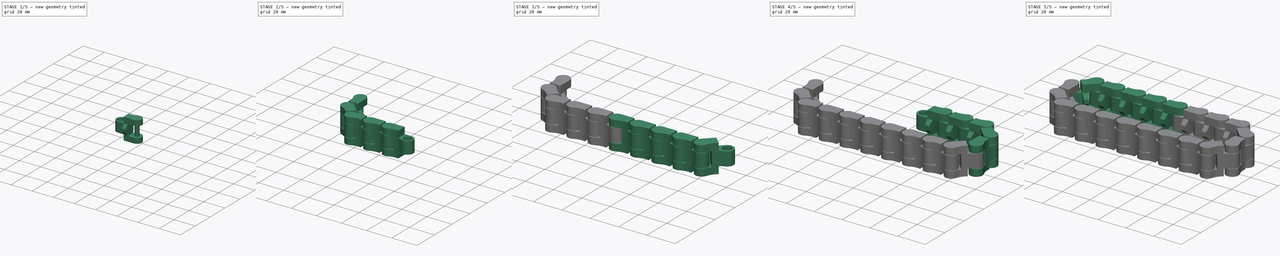
[diagram: build sequence overview — one tinted view per stage of 5, left to right]
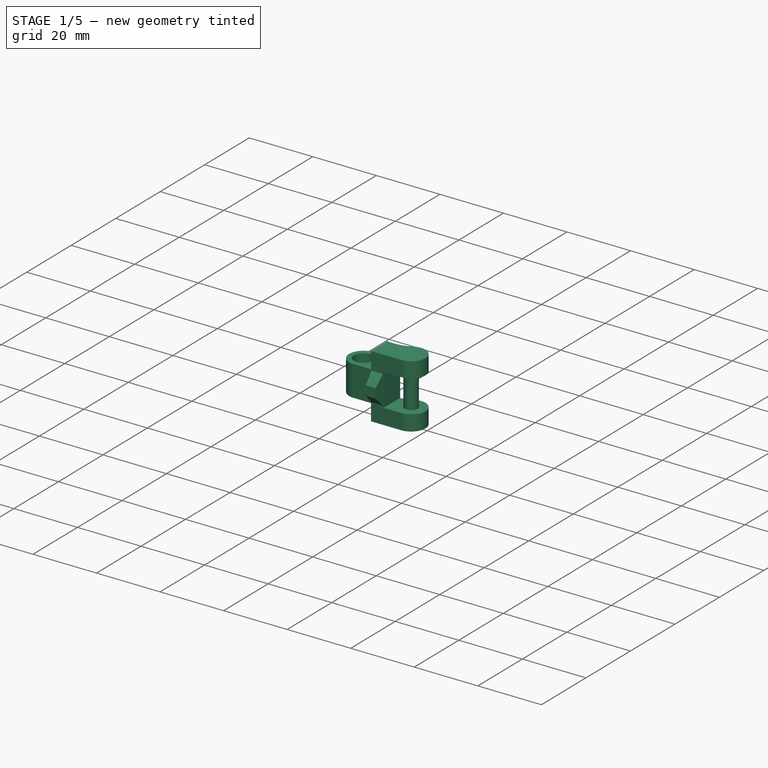
[diagram: stage 1 of 5 — iso view after this stage's code; geometry added in this stage tinted green]
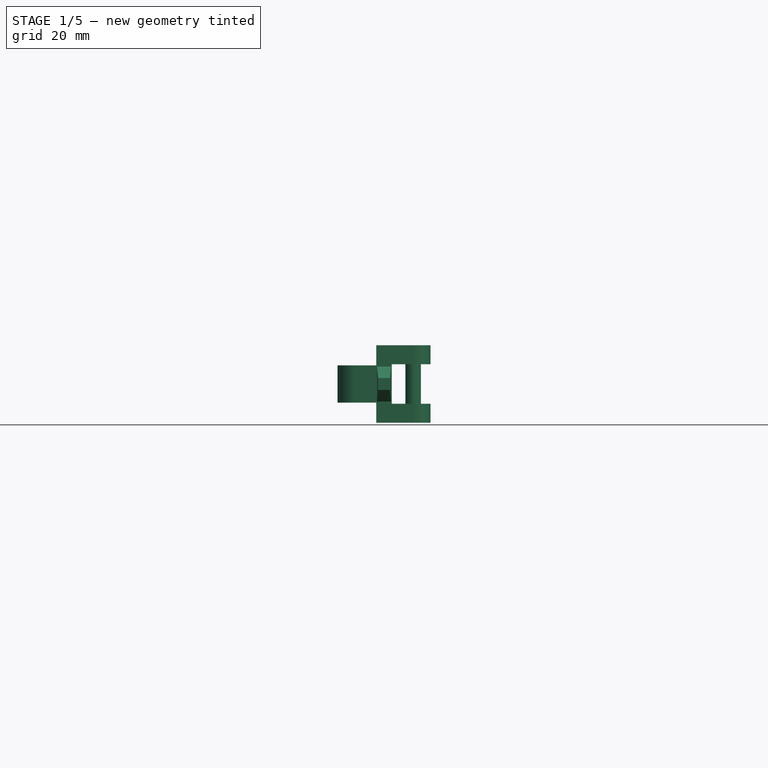
[diagram: stage 1 of 5 — front view after this stage's code; geometry added in this stage tinted green]
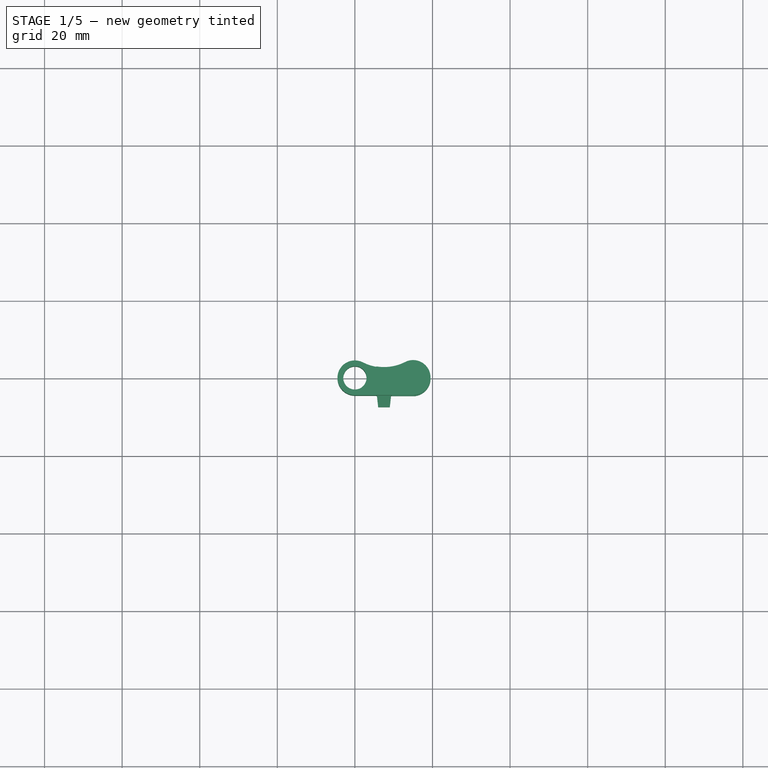
[diagram: stage 1 of 5 — top view after this stage's code; geometry added in this stage tinted green]
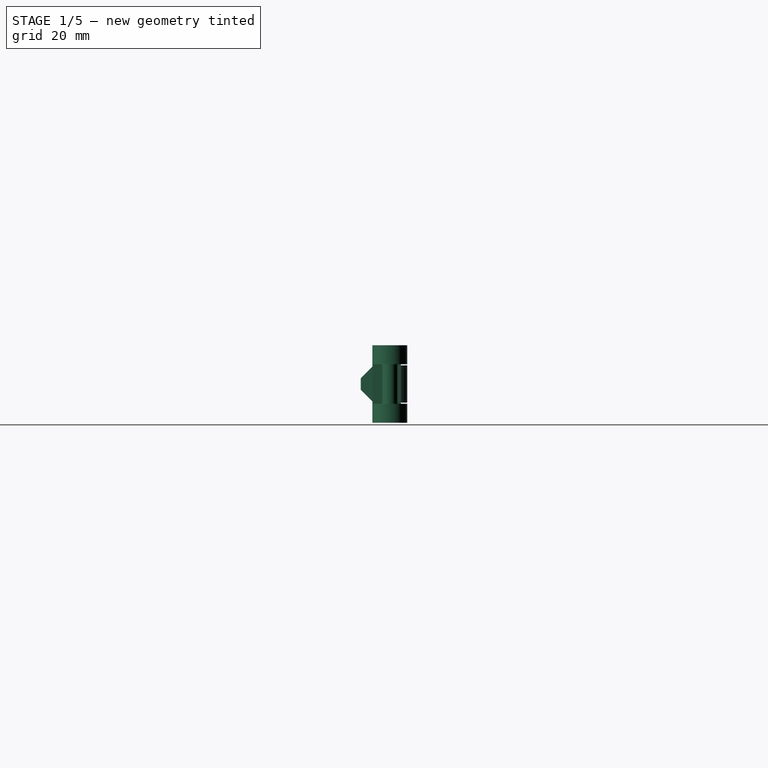
[diagram: stage 1 of 5 — right view after this stage's code; geometry added in this stage tinted green]
FCSTD DOCUMENT  (FreeCAD 0.17R13541 (Git))
Label: track
License: All rights reserved
LicenseURL: http://en.wikipedia.org/wiki/All_rights_reserved
objects: PartDesign::FeatureBase×20, Sketcher::SketchObject×4, PartDesign::Plane×3, PartDesign::Pocket×3, PartDesign::Pad×1, PartDesign::Mirrored×1, PartDesign::Body×1
note: 37 computed .brp shape members not serialized (recipe doc carries the construction recipe); baked Part::Feature solids carry a one-line shape summary decoded from their .brp

FEATURE [Sketcher::SketchObject] Sketch
  MapMode = 5
  Support = -> [XY_Plane]
  sketch-geometry (12):
    g0: ArcOfCircle CenterX=0 CenterY=0 CenterZ=0 NormalX=0 NormalY=0 NormalZ=1 AngleXU=0 Radius=4.5 StartAngle=1.09893 EndAngle=4.71239
    g1: ArcOfCircle CenterX=15 CenterY=0 CenterZ=0 NormalX=0 NormalY=0 NormalZ=1 AngleXU=0 Radius=4.5 StartAngle=4.71239 EndAngle=8.32584
    g2: ArcOfCircle CenterX=7.5 CenterY=14.6969 CenterZ=0 NormalX=0 NormalY=0 NormalZ=1 AngleXU=0 Radius=12 StartAngle=4.24053 EndAngle=5.18425
    g3: GeomPoint X=0 Y=4.5 Z=0
    g4: LineSegment StartX=2.12546e-05 StartY=-4.5 StartZ=0 EndX=5.67857 EndY=-4.5 EndZ=0
    g5: LineSegment StartX=5.67857 StartY=-4.5 StartZ=0 EndX=6 EndY=-7.5 EndZ=0
    g6: LineSegment StartX=6 StartY=-7.5 StartZ=0 EndX=9 EndY=-7.5 EndZ=0
    g7: LineSegment StartX=9 StartY=-7.5 StartZ=0 EndX=9.32143 EndY=-4.5 EndZ=0
    g8: LineSegment StartX=9.32143 StartY=-4.5 StartZ=0 EndX=15 EndY=-4.5 EndZ=0
    g9: Circle CenterX=0 CenterY=0 CenterZ=0 NormalX=0 NormalY=0 NormalZ=1 AngleXU=0 Radius=3
    g10: LineSegment [constr] StartX=7.5 StartY=14.6969 StartZ=0 EndX=7.5 EndY=-7.5 EndZ=0
    g11: GeomPoint X=7.5 Y=-21.5 Z=0
  constraints (31):
    c: Coincident(g0,g-1)
    c: PointOnObject(g1,g-1)
    c: Equal(g0,g1)
    c: Tangent(g2,g0) = 1.5708
    c: Tangent(g2,g1) = 1.5708
    c: PointOnObject(g3,g-2)
    c: PointOnObject(g3,g0)
    c: DistanceY(g0,g3) = 9
    c: Coincident(g4,g0)
    c: Horizontal(g4)
    c: Coincident(g4,g5)
    c: Coincident(g5,g6)
    c: Horizontal(g6)
    c: Coincident(g6,g7)
    c: Coincident(g7,g8)
    c: Coincident(g8,g1)
    c: Horizontal(g8)
    c: Tangent(g8,g1)
    c: DistanceX(g-1,g1) = 15
    c: Coincident(g9,g-1)
    c: Radius(g9) = 3
    c: Coincident(g10,g2)
    c: PointOnObject(g10,g6)
    c: Symmetric(g5,g6,g10)
    c: Symmetric(g7,g4,g10)
    c: DistanceY(g5,g4) = 3
    c: DistanceX(g6,g6) = 3
    c: Radius(g2) = 12
    c: PointOnObject(g11,g10)
    c: DistanceY(g11,g4) = 17
    c: PointOnObject(g11,g5)
FEATURE [PartDesign::Pad] Pad
  Length = 20
  Length2 = 100
  Midplane = true
  Profile = -> Sketch
  Type = 0
FEATURE [PartDesign::Plane] DatumPlane
  MapMode = 5
  Support = -> [XY_Plane]
FEATURE [Sketcher::SketchObject] Sketch001
  MapMode = 5
  Support = -> [DatumPlane]
  sketch-geometry (6):
    g0: Circle CenterX=15 CenterY=0 CenterZ=0 NormalX=0 NormalY=0 NormalZ=1 AngleXU=0 Radius=2
    g1: LineSegment StartX=9.5 StartY=5.5 StartZ=0 EndX=9.5 EndY=-5.5 EndZ=0
    g2: LineSegment StartX=9.5 StartY=-5.5 StartZ=0 EndX=20.5 EndY=-5.5 EndZ=0
    g3: LineSegment StartX=20.5 StartY=-5.5 StartZ=0 EndX=20.5 EndY=5.5 EndZ=0
    g4: LineSegment StartX=20.5 StartY=5.5 StartZ=0 EndX=9.5 EndY=5.5 EndZ=0
    g5: Circle [constr] CenterX=15 CenterY=0 CenterZ=0 NormalX=0 NormalY=0 NormalZ=1 AngleXU=0 Radius=7.77817
  constraints (17):
    c: PointOnObject(g0,g-1)
    c: Radius(g0) = 2
    c: Coincident(g1,g2)
    c: Coincident(g2,g3)
    c: Coincident(g3,g4)
    c: Coincident(g4,g1)
    c: Equal(g1,g2)
    c: Equal(g1,g3)
    c: Equal(g1,g4)
    c: PointOnObject(g1,g5)
    c: PointOnObject(g2,g5)
    c: PointOnObject(g3,g5)
    c: PointOnObject(g4,g5)
    c: Coincident(g5,g0)
    c: DistanceX(g4,g4) = 11
    c: DistanceX(g-1,g0) = 15
    c: Horizontal(g4)
FEATURE [PartDesign::Pocket] Pocket
  BaseFeature = -> Pad
  Length = 10.2
  Length2 = 100
  Midplane = true
  Profile = -> Sketch001
  Type = 0
FEATURE [PartDesign::Plane] DatumPlane001
  AttachmentOffset = pos=(0,0,10) rot=(0,0,1;0rad)
  MapMode = 5
  Placement = pos=(0,0,10) rot=(0,0,1;0rad)
  Support = -> [XY_Plane]
FEATURE [Sketcher::SketchObject] Sketch002
  MapMode = 5
  Placement = pos=(0,0,10) rot=(0,0,1;0rad)
  Support = -> [DatumPlane001]
  sketch-geometry (5):
    g0: LineSegment StartX=-5.5 StartY=5.5 StartZ=0 EndX=-5.5 EndY=-5.5 EndZ=0
    g1: LineSegment StartX=-5.5 StartY=-5.5 StartZ=0 EndX=5.5 EndY=-5.5 EndZ=0
    g2: LineSegment StartX=5.5 StartY=-5.5 StartZ=0 EndX=5.5 EndY=5.5 EndZ=0
    g3: LineSegment StartX=5.5 StartY=5.5 StartZ=0 EndX=-5.5 EndY=5.5 EndZ=0
    g4: Circle [constr] CenterX=0 CenterY=0 CenterZ=0 NormalX=0 NormalY=0 NormalZ=1 AngleXU=0 Radius=7.77817
  constraints (14):
    c: Coincident(g0,g1)
    c: Coincident(g1,g2)
    c: Coincident(g2,g3)
    c: Coincident(g3,g0)
    c: Equal(g0,g1)
    c: Equal(g0,g2)
    c: Equal(g0,g3)
    c: PointOnObject(g0,g4)
    c: PointOnObject(g1,g4)
    c: PointOnObject(g2,g4)
    c: PointOnObject(g3,g4)
    c: Coincident(g4,g-1)
    c: DistanceX(g3,g3) = 11
    c: Horizontal(g3)
FEATURE [PartDesign::Pocket] Pocket001
  BaseFeature = -> Pocket
  Length = 5.2
  Length2 = 100
  Profile = -> Sketch002
  Type = 0
FEATURE [PartDesign::Mirrored] Mirrored
  BaseFeature = -> Pocket001
  MirrorPlane = -> XY_Plane
  Originals = -> [Pocket001]
FEATURE [PartDesign::Plane] DatumPlane002
  AttachmentOffset = pos=(0,0,25) rot=(0,0,1;0rad)
  MapMode = 5
  Placement = pos=(25,-3e-12,3e-12) rot=(0.57735,0.57735,0.57735;2.0944rad)
  Support = -> [YZ_Plane]
FEATURE [Sketcher::SketchObject] Sketch003
  MapMode = 5
  Placement = pos=(25,-3e-12,3e-12) rot=(0.57735,0.57735,0.57735;2.0944rad)
  Support = -> [DatumPlane002]
  sketch-geometry (8):
    g0: LineSegment StartX=-4.5 StartY=15 StartZ=0 EndX=-4.5 EndY=4.5 EndZ=0
    g1: LineSegment StartX=-4.5 StartY=4.5 StartZ=0 EndX=-7.5 EndY=1.5 EndZ=0
    g2: LineSegment StartX=-7.5 StartY=1.5 StartZ=0 EndX=-7.5 EndY=-1.5 EndZ=0
    g3: LineSegment StartX=-7.5 StartY=-1.5 StartZ=0 EndX=-4.5 EndY=-4.5 EndZ=0
    g4: LineSegment StartX=-4.5 StartY=-4.5 StartZ=0 EndX=-4.5 EndY=-15 EndZ=0
    g5: LineSegment StartX=-4.5 StartY=-15 StartZ=0 EndX=-9.5 EndY=-15 EndZ=0
    g6: LineSegment StartX=-9.5 StartY=-15 StartZ=0 EndX=-9.5 EndY=15 EndZ=0
    g7: LineSegment StartX=-9.5 StartY=15 StartZ=0 EndX=-4.5 EndY=15 EndZ=0
  constraints (23):
    c: Vertical(g0)
    c: Coincident(g0,g1)
    c: Coincident(g1,g2)
    c: Vertical(g2)
    c: Coincident(g2,g3)
    c: Coincident(g3,g4)
    c: Vertical(g4)
    c: Coincident(g4,g5)
    c: Horizontal(g5)
    c: Coincident(g5,g6)
    c: Vertical(g6)
    c: Coincident(g6,g7)
    c: Coincident(g7,g0)
    c: Horizontal(g7)
    c: Symmetric(g2,g1,g-1)
    c: Symmetric(g0,g3,g-1)
    c: Angle(g0,g1) = 2.35619
    c: DistanceX(g2,g3) = 3
    c: DistanceX(g5,g5) = 5
    c: DistanceX(g3,g-1) = 4.5
    c: DistanceY(g2,g2) = 3
    c: Symmetric(g6,g5,g-1)
    c: DistanceY(g6,g6) = 30
FEATURE [PartDesign::Pocket] Pocket002
  BaseFeature = -> Mirrored
  Length = 5
  Length2 = 100
  Profile = -> Sketch003
  Type = 1
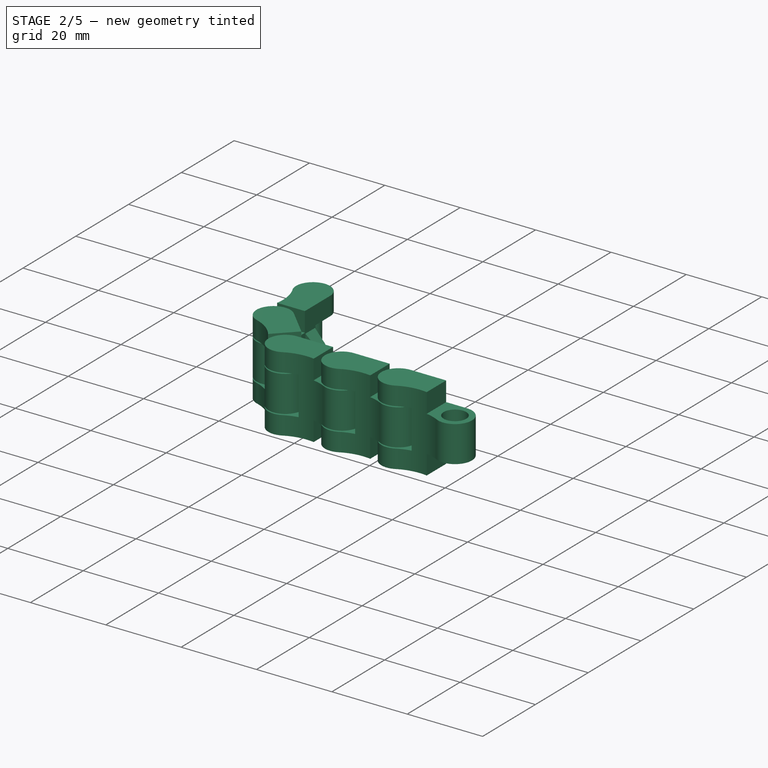
[diagram: stage 2 of 5 — iso view after this stage's code; geometry added in this stage tinted green]
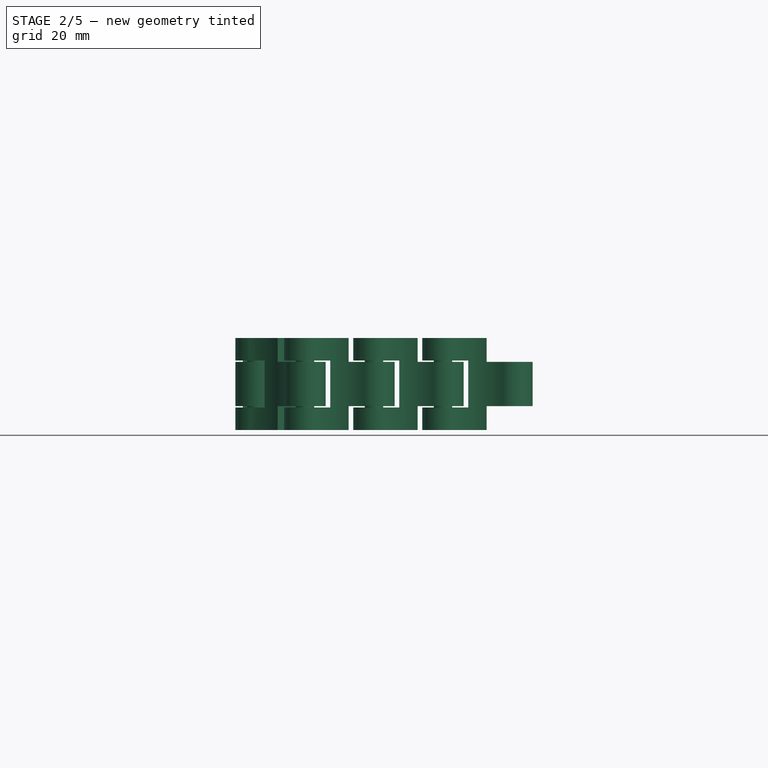
[diagram: stage 2 of 5 — front view after this stage's code; geometry added in this stage tinted green]
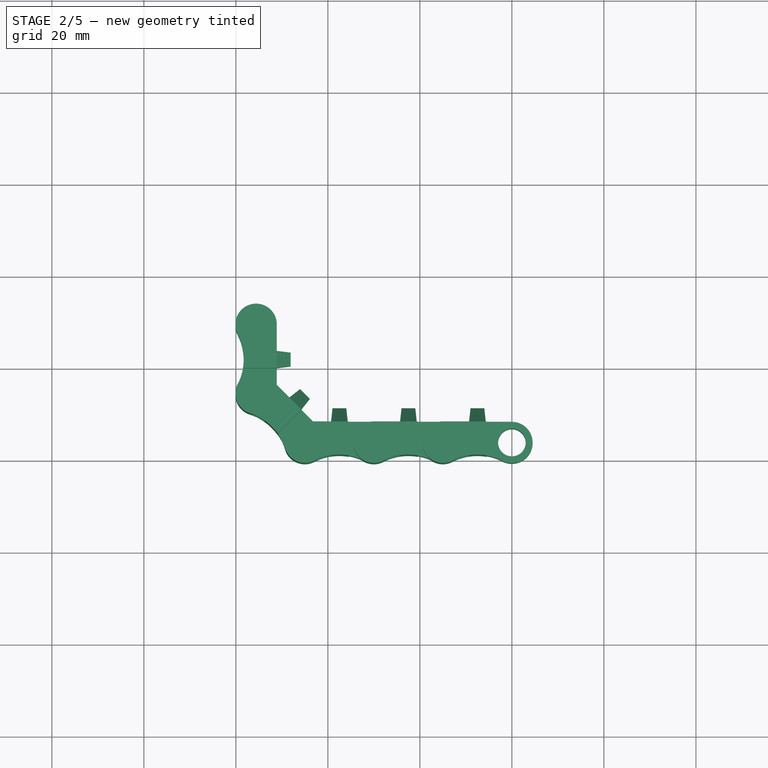
[diagram: stage 2 of 5 — top view after this stage's code; geometry added in this stage tinted green]
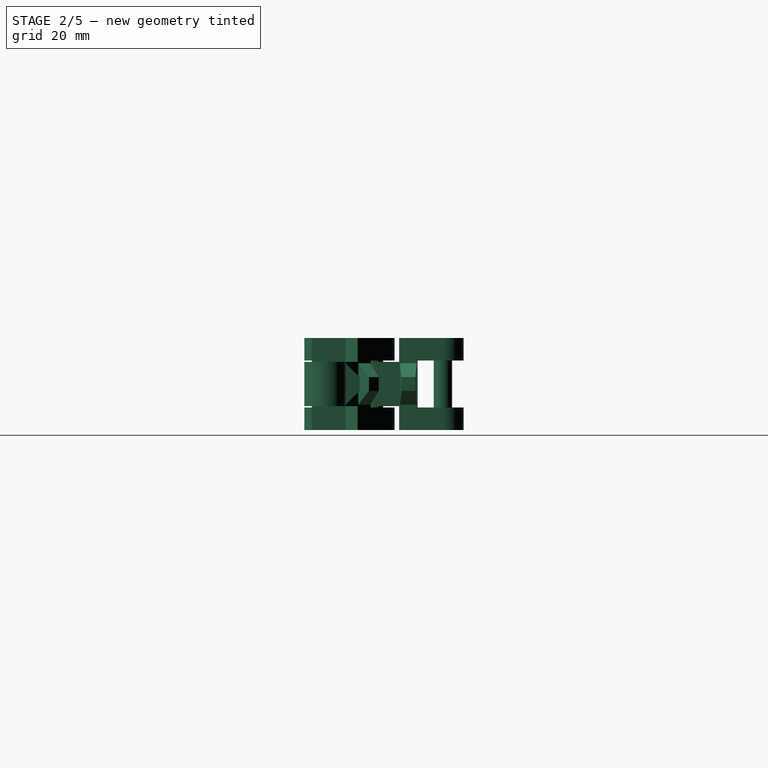
[diagram: stage 2 of 5 — right view after this stage's code; geometry added in this stage tinted green]
FEATURE [PartDesign::FeatureBase] Clone015
  BaseFeature = -> Body
  Placement = pos=(60,-36.21,0) rot=(0,0,1;3.14159rad)
FEATURE [PartDesign::FeatureBase] Clone016
  BaseFeature = -> Body
  Placement = pos=(45,-36.21,0) rot=(0,0,1;3.14159rad)
FEATURE [PartDesign::FeatureBase] Clone017
  BaseFeature = -> Body
  Placement = pos=(30,-36.21,0) rot=(0,0,1;3.14159rad)
FEATURE [PartDesign::FeatureBase] Clone018
  BaseFeature = -> Body
  Placement = pos=(15,-36.21,0) rot=(0,0,1;2.35619rad)
FEATURE [PartDesign::FeatureBase] Clone019
  BaseFeature = -> Body
  Placement = pos=(4.3935,-25.6065,0) rot=(0,0,1;1.5708rad)
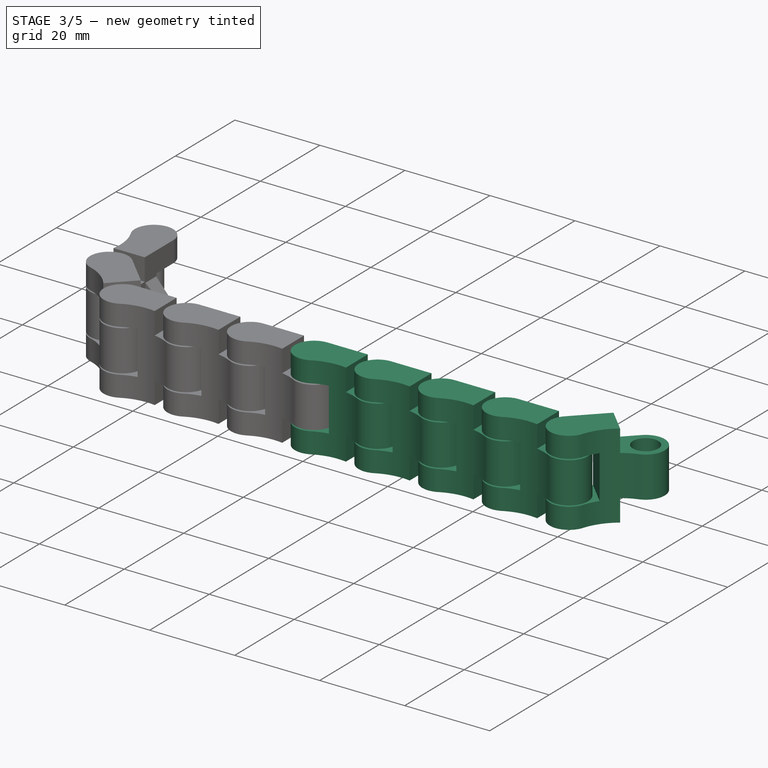
[diagram: stage 3 of 5 — iso view after this stage's code; geometry added in this stage tinted green]
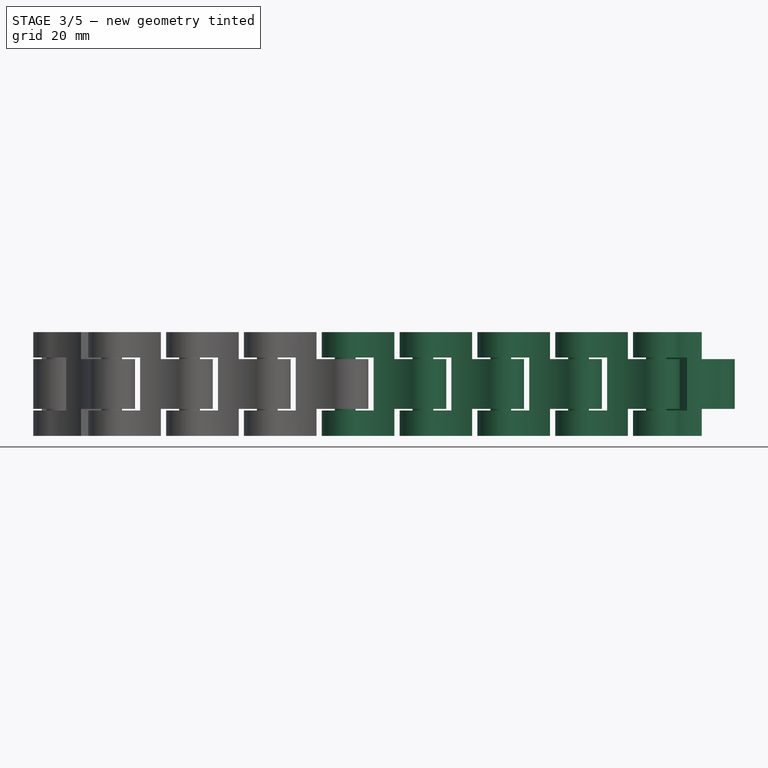
[diagram: stage 3 of 5 — front view after this stage's code; geometry added in this stage tinted green]
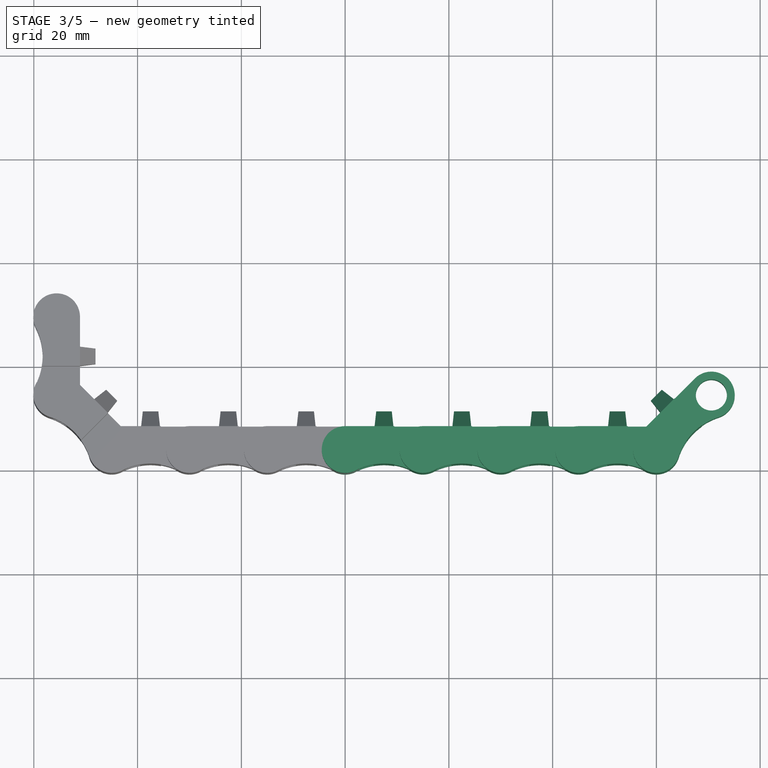
[diagram: stage 3 of 5 — top view after this stage's code; geometry added in this stage tinted green]
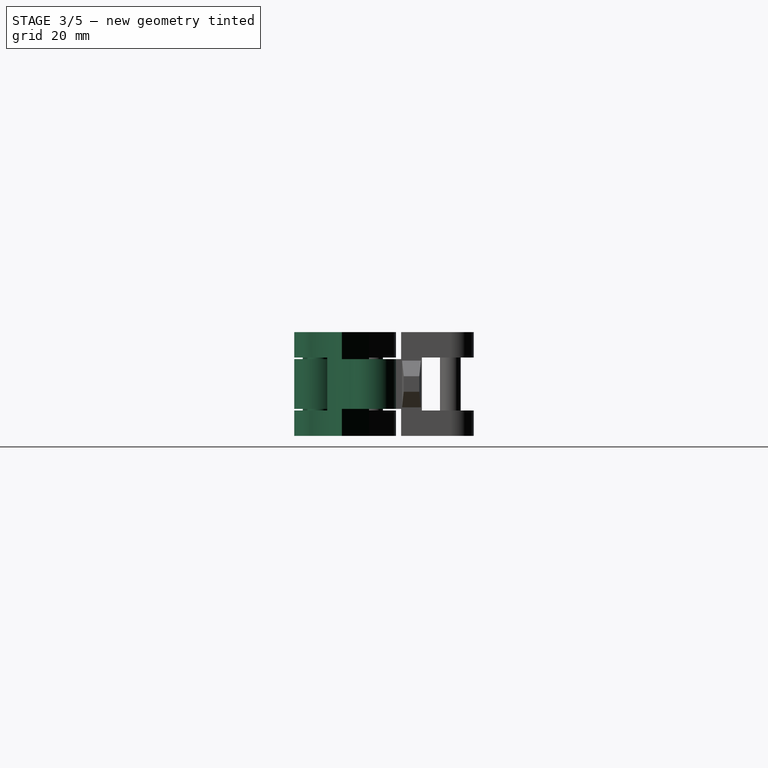
[diagram: stage 3 of 5 — right view after this stage's code; geometry added in this stage tinted green]
FEATURE [PartDesign::FeatureBase] Clone010
  BaseFeature = -> Body
  Placement = pos=(130.607,-25.605,0) rot=(0,0,1;3.92699rad)
FEATURE [PartDesign::FeatureBase] Clone011
  BaseFeature = -> Body
  Placement = pos=(120,-36.213,0) rot=(0,0,1;3.14159rad)
FEATURE [PartDesign::FeatureBase] Clone012
  BaseFeature = -> Body
  Placement = pos=(105,-36.21,0) rot=(0,0,1;3.14159rad)
FEATURE [PartDesign::FeatureBase] Clone013
  BaseFeature = -> Body
  Placement = pos=(90,-36.21,0) rot=(0,0,1;3.14159rad)
FEATURE [PartDesign::FeatureBase] Clone014
  BaseFeature = -> Body
  Placement = pos=(75,-36.21,0) rot=(0,0,1;3.14159rad)
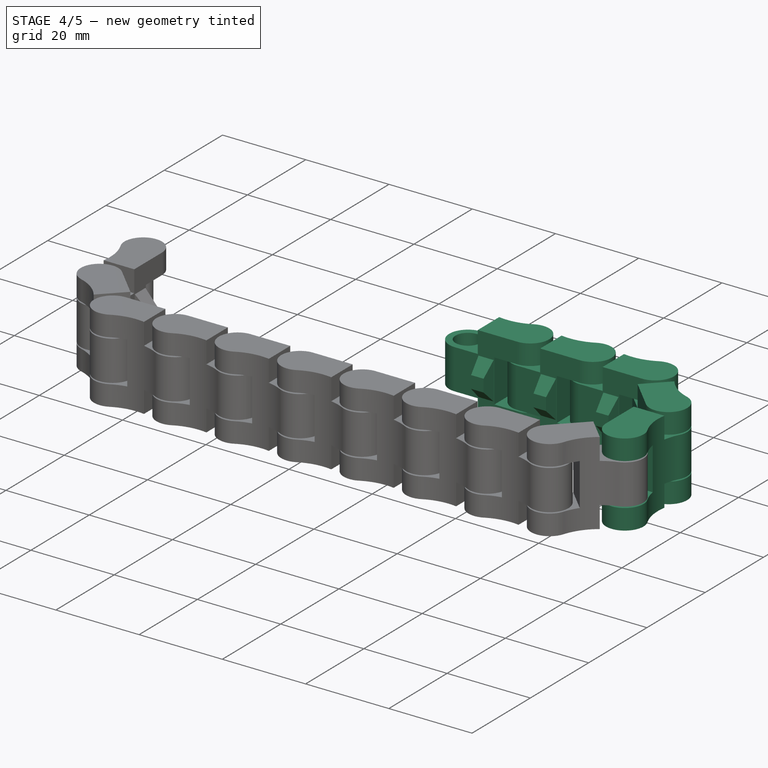
[diagram: stage 4 of 5 — iso view after this stage's code; geometry added in this stage tinted green]
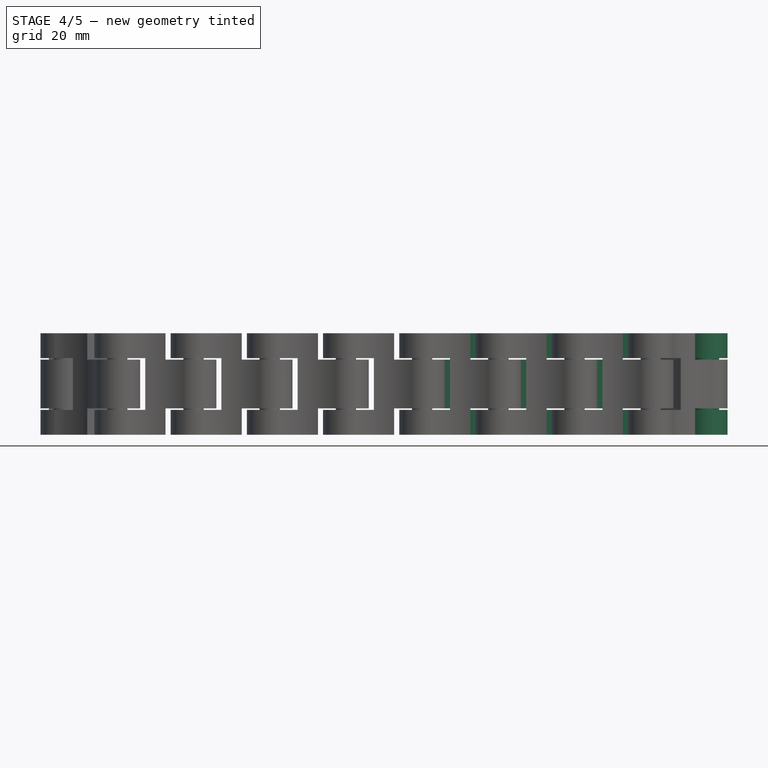
[diagram: stage 4 of 5 — front view after this stage's code; geometry added in this stage tinted green]
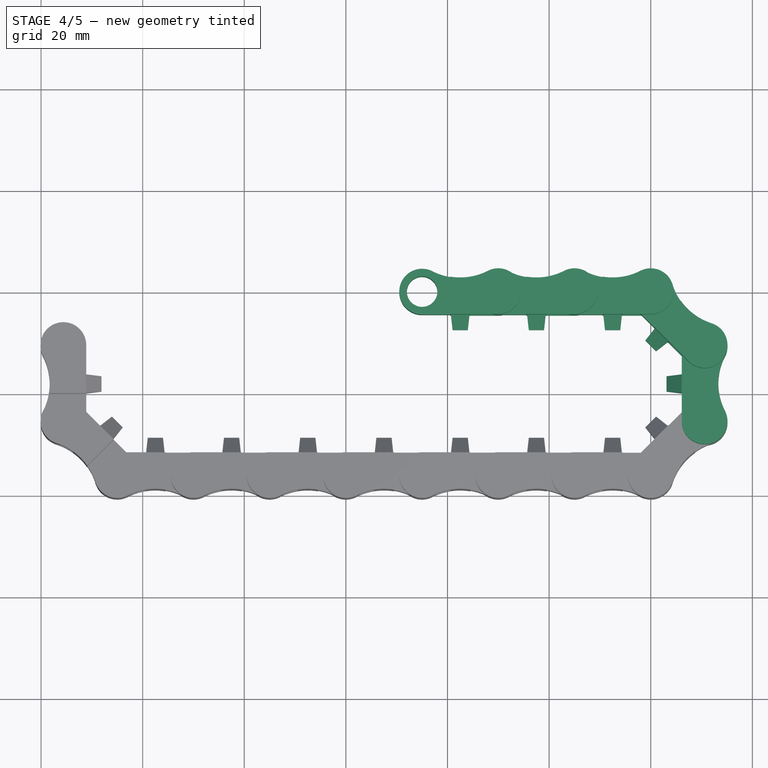
[diagram: stage 4 of 5 — top view after this stage's code; geometry added in this stage tinted green]
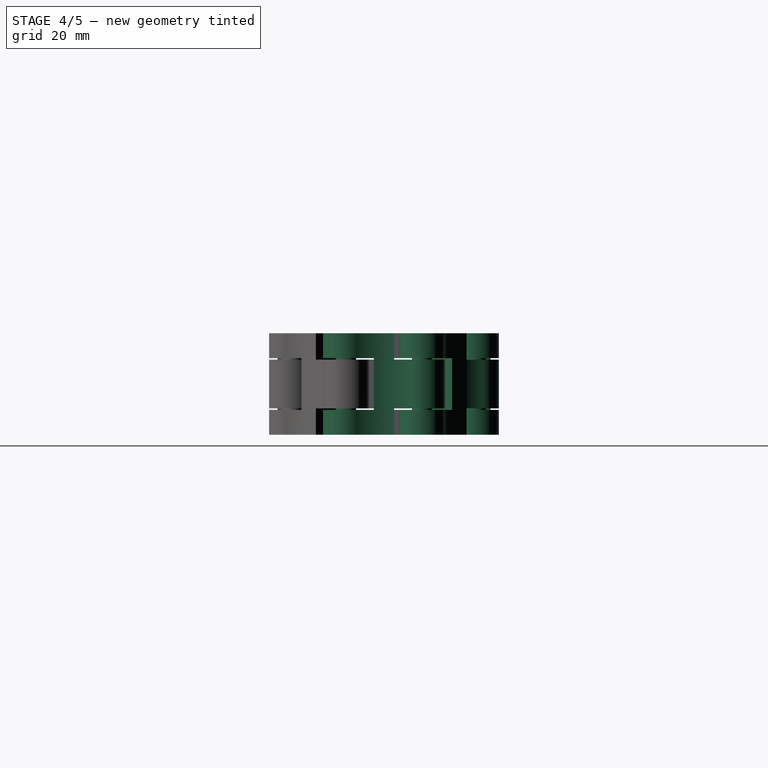
[diagram: stage 4 of 5 — right view after this stage's code; geometry added in this stage tinted green]
FEATURE [PartDesign::FeatureBase] Clone005
  BaseFeature = -> Body
  Placement = pos=(75,0,0) rot=(0,0,1;0rad)
FEATURE [PartDesign::FeatureBase] Clone006
  BaseFeature = -> Body
  Placement = pos=(90,0,0) rot=(0,0,1;0rad)
FEATURE [PartDesign::FeatureBase] Clone007
  BaseFeature = -> Body
  Placement = pos=(105,0,0) rot=(0,0,1;0rad)
FEATURE [PartDesign::FeatureBase] Clone008
  BaseFeature = -> Body
  Placement = pos=(120,0,0) rot=(0,0,-1;0.785398rad)
FEATURE [PartDesign::FeatureBase] Clone009
  BaseFeature = -> Body
  Placement = pos=(130.607,-10.6065,0) rot=(0,0,-1;1.5708rad)
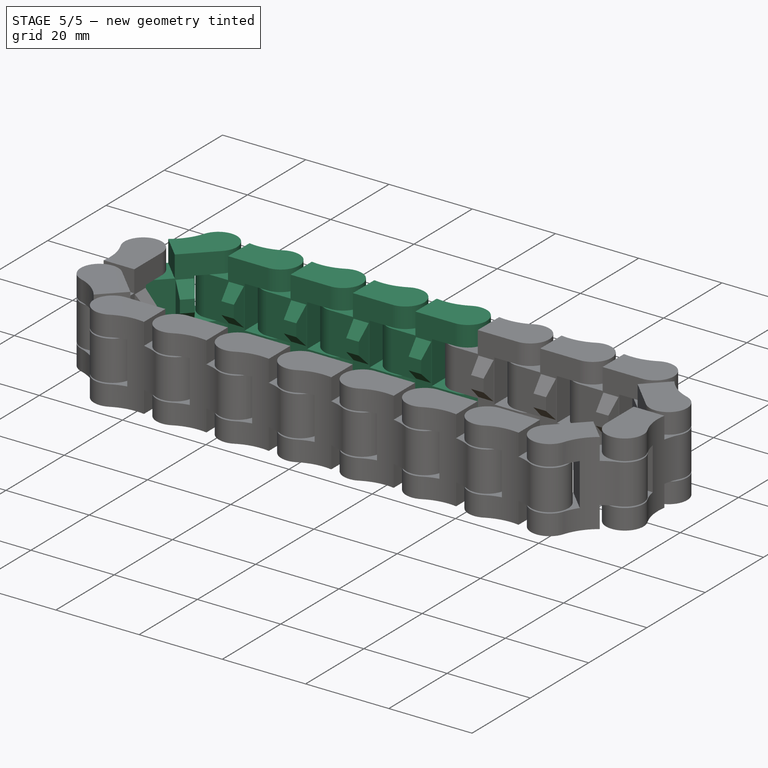
[diagram: stage 5 of 5 — iso view after this stage's code; geometry added in this stage tinted green]
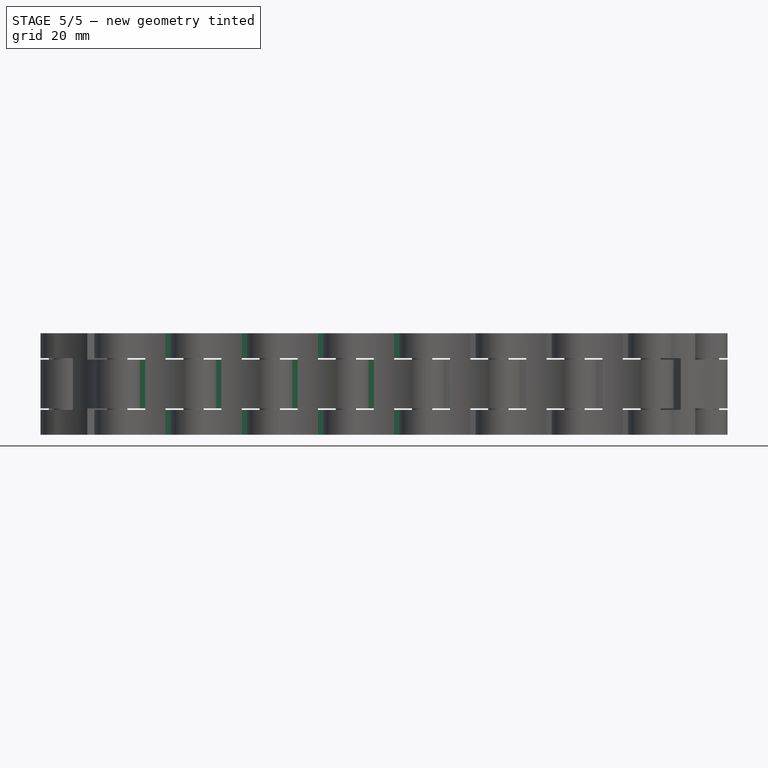
[diagram: stage 5 of 5 — front view after this stage's code; geometry added in this stage tinted green]
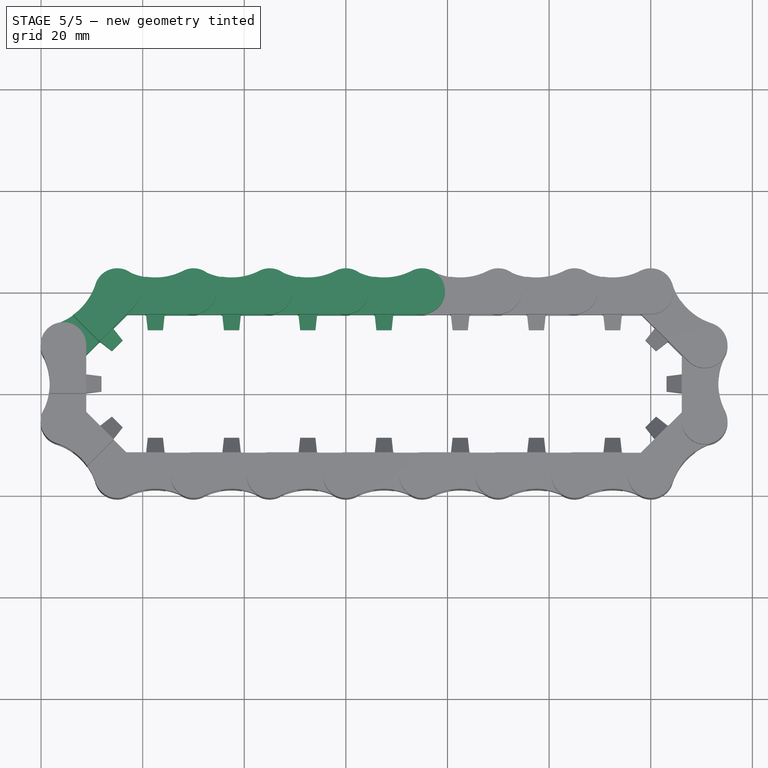
[diagram: stage 5 of 5 — top view after this stage's code; geometry added in this stage tinted green]
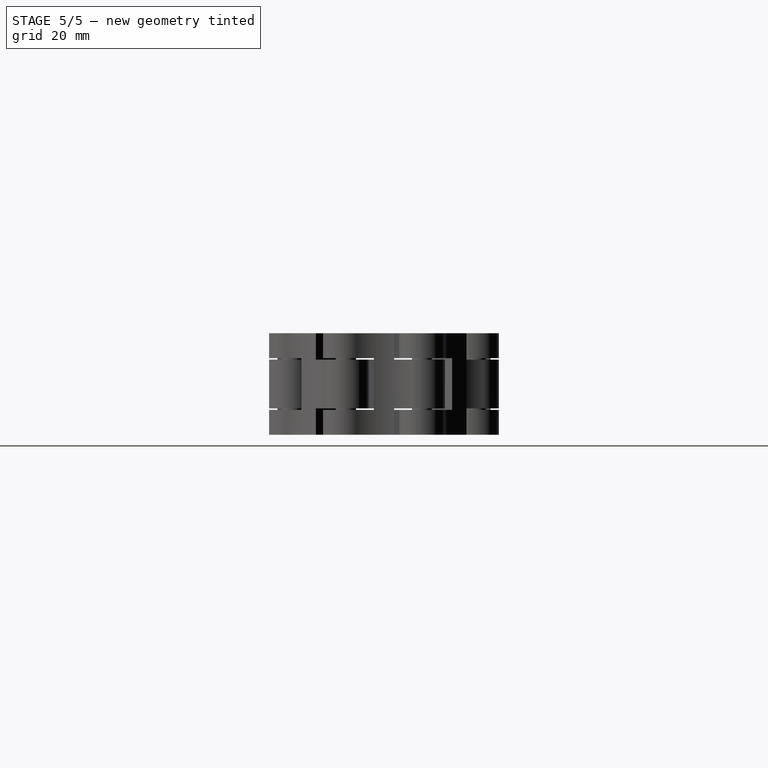
[diagram: stage 5 of 5 — right view after this stage's code; geometry added in this stage tinted green]
FEATURE [PartDesign::Body] Body  label="link"
  Group = -> [Sketch,Pad,DatumPlane,Sketch001,Pocket,DatumPlane001,Sketch002,Pocket001,Mirrored,DatumPlane002,Sketch003,Pocket002]
  Origin = -> Origin
  Tip = -> Pocket002
FEATURE [PartDesign::FeatureBase] Clone
  BaseFeature = -> Body
  Placement = pos=(4.3935,-10.6065,0) rot=(0,0,1;0.785398rad)
FEATURE [PartDesign::FeatureBase] Clone001
  BaseFeature = -> Body
  Placement = pos=(15,0,0) rot=(0,0,1;0rad)
FEATURE [PartDesign::FeatureBase] Clone002
  BaseFeature = -> Body
  Placement = pos=(30,0,0) rot=(0,0,1;0rad)
FEATURE [PartDesign::FeatureBase] Clone003
  BaseFeature = -> Body
  Placement = pos=(45,0,0) rot=(0,0,1;0rad)
FEATURE [PartDesign::FeatureBase] Clone004
  BaseFeature = -> Body
  Placement = pos=(60,0,0) rot=(0,0,1;0rad)
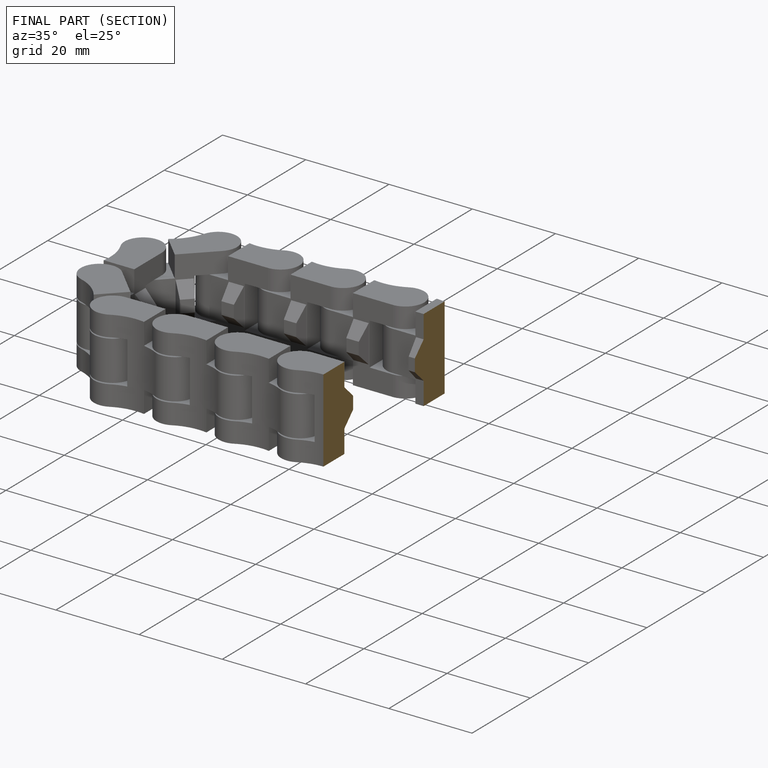
[diagram: finished part — half-section view (interior)]
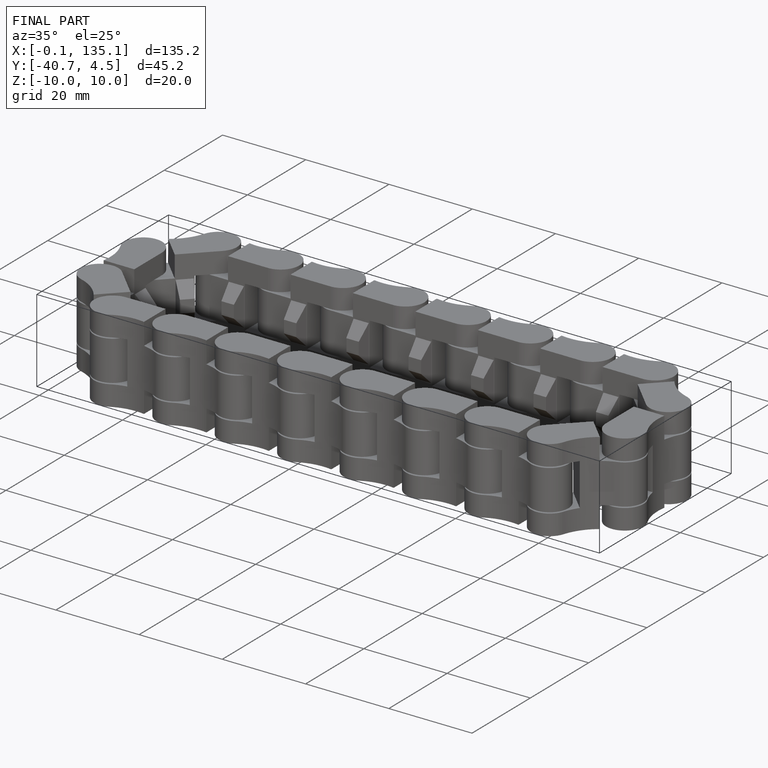
[diagram: finished part — iso view with bounding-box wireframe]
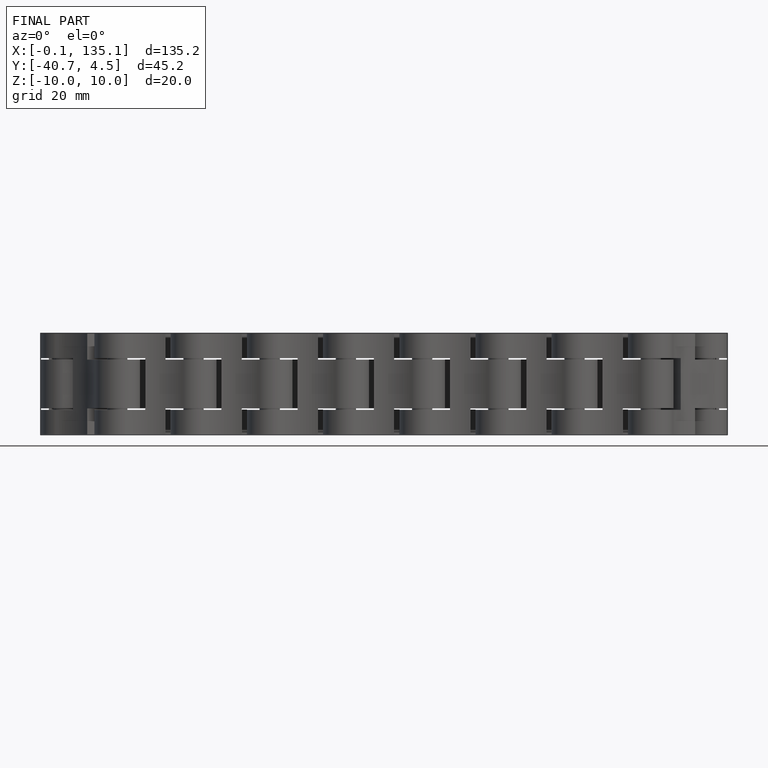
[diagram: finished part — front view with bounding-box wireframe]
